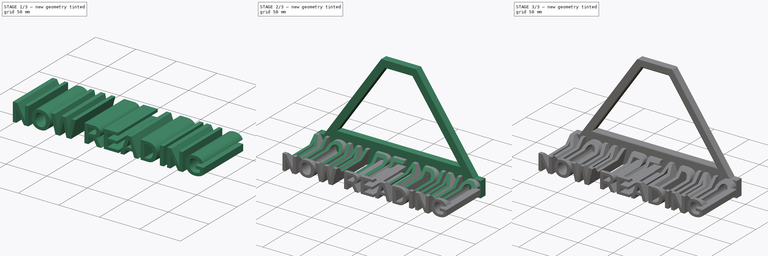
[diagram: build sequence overview — one tinted view per stage of 3, left to right]
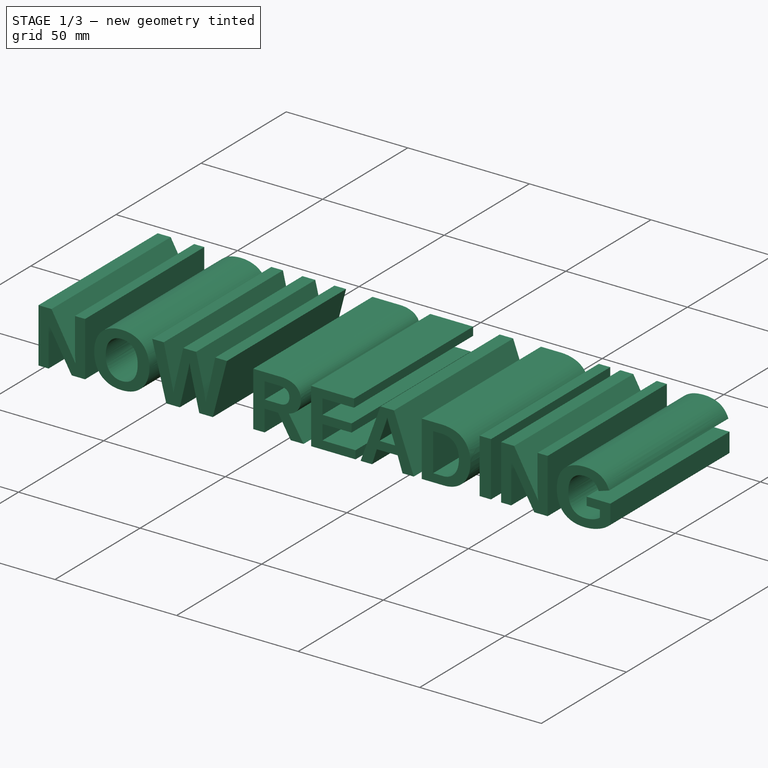
[diagram: stage 1 of 3 — iso view after this stage's code; geometry added in this stage tinted green]
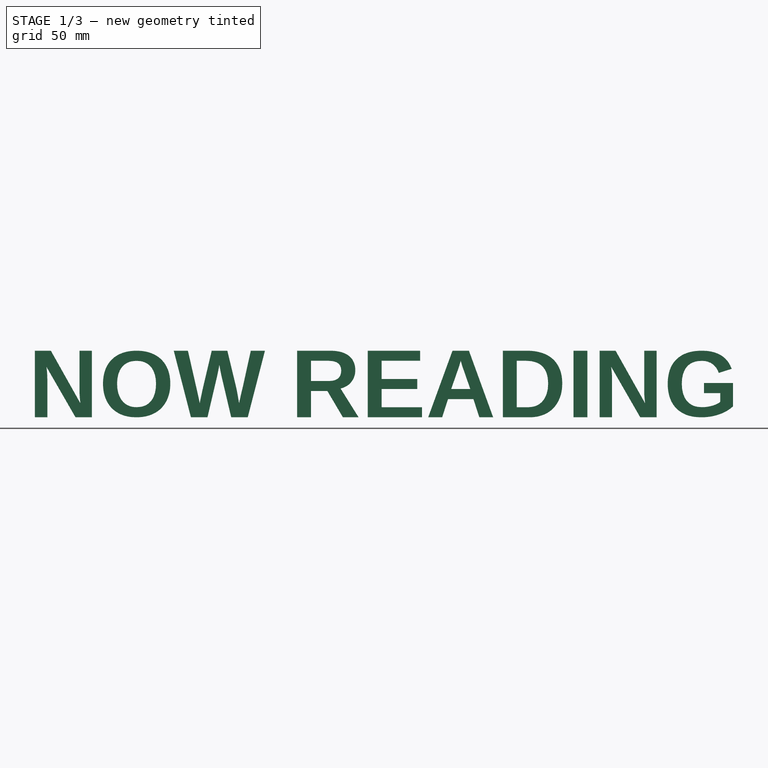
[diagram: stage 1 of 3 — front view after this stage's code; geometry added in this stage tinted green]
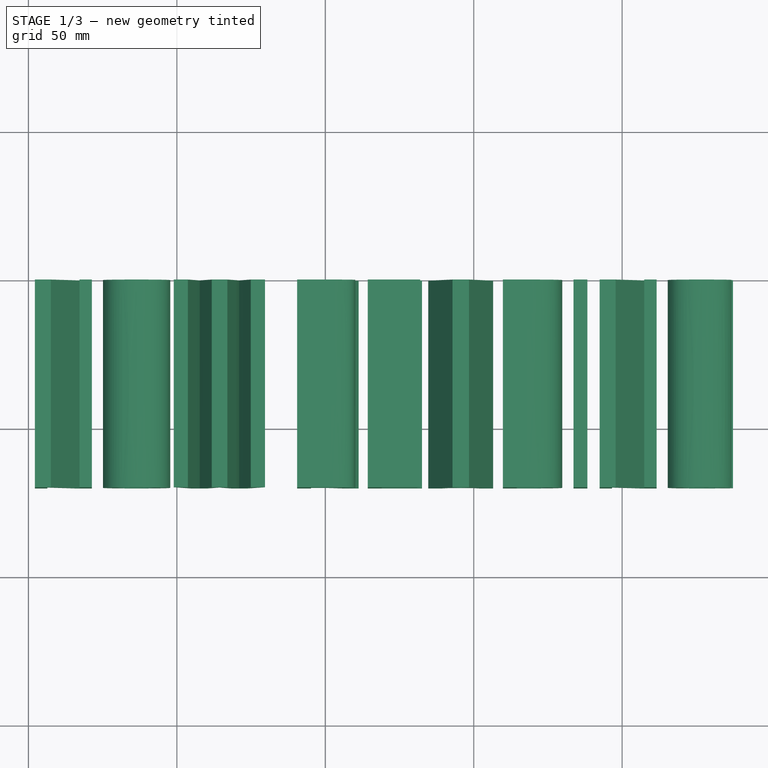
[diagram: stage 1 of 3 — top view after this stage's code; geometry added in this stage tinted green]
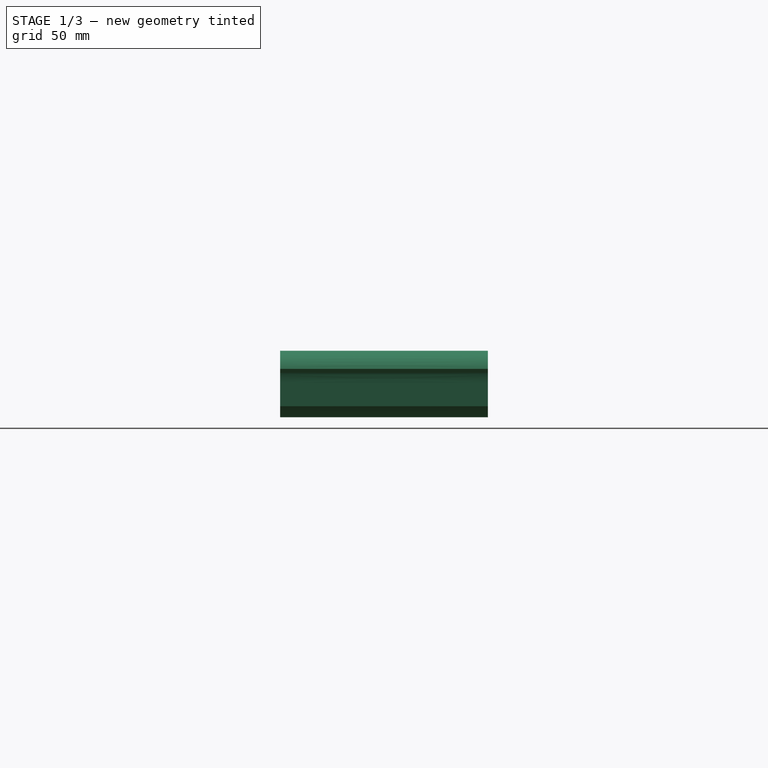
[diagram: stage 1 of 3 — right view after this stage's code; geometry added in this stage tinted green]
FCSTD DOCUMENT  (FreeCAD 0.20R31227 (Git))
Label: now reading stand
License: Creative Commons Attribution
LicenseURL: http://creativecommons.org/licenses/by/4.0/
objects: Sketcher::SketchObject×3, PartDesign::Pad×2, PartDesign::Fillet×2, Part::Part2DObjectPython×1, Part::Extrusion×1, PartDesign::FeatureBase×1, PartDesign::Pocket×1, PartDesign::Body×1
note: 23 computed .brp shape members not serialized (recipe doc carries the construction recipe); baked Part::Feature solids carry a one-line shape summary decoded from their .brp

FEATURE [Part::Part2DObjectPython] ShapeString  # Draft 2D object (typed FeaturePython)
  FontFile = <path>
  MakeFace = true
  Placement = pos=(0,0,0) rot=(1,0,0;1.5708rad)
  Size = 25
  String = NOW READING
  Tracking = 0
  TreeRank = 0
FEATURE [Part::Extrusion] Extrude
  Base = -> ShapeString
  Dir = (0,-1,2.98023e-08)
  DirMode = 2
  FaceMakerClass = Part::FaceMakerBullseye
  InnerTaperAngle = 0
  InnerTaperAngleRev = 0
  LengthFwd = 70
  LengthRev = 0
  Solid = false
  Symmetric = false
  TreeRank = 0
FEATURE [PartDesign::FeatureBase] BaseFeature
  BaseFeature = -> Extrude
  NewSolid = false
  Suppress = false
  TreeRank = 0
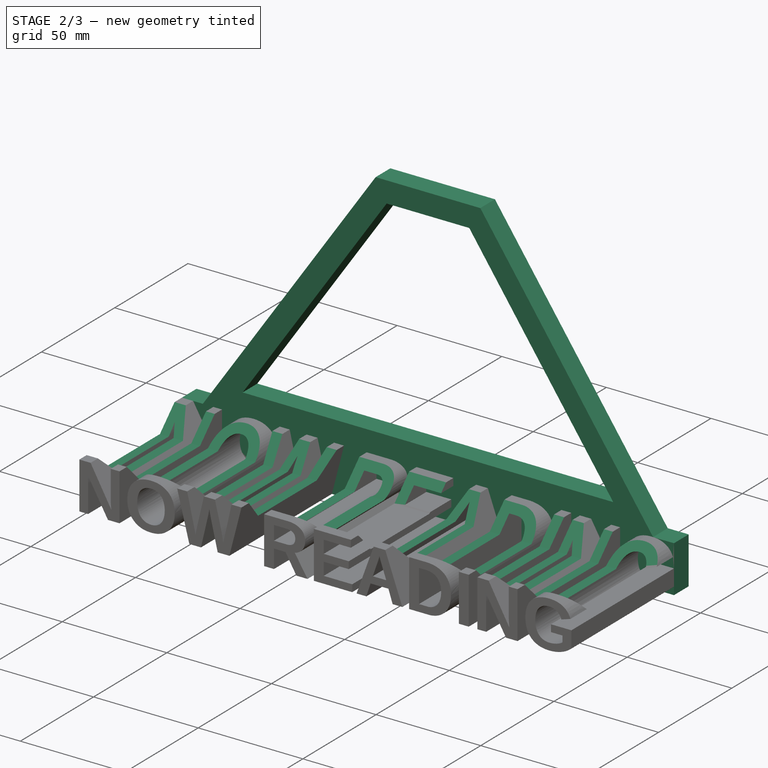
[diagram: stage 2 of 3 — iso view after this stage's code; geometry added in this stage tinted green]
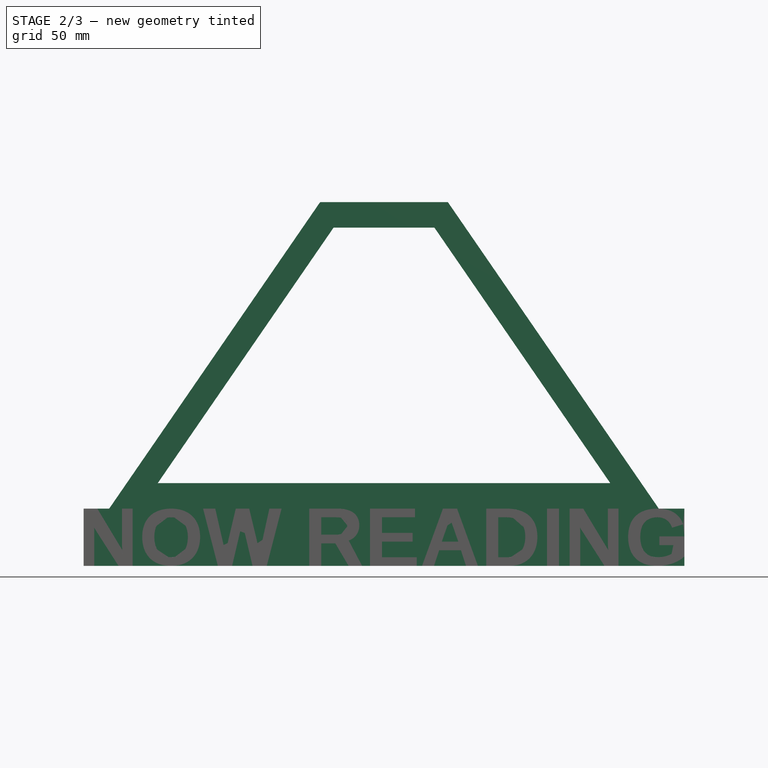
[diagram: stage 2 of 3 — front view after this stage's code; geometry added in this stage tinted green]
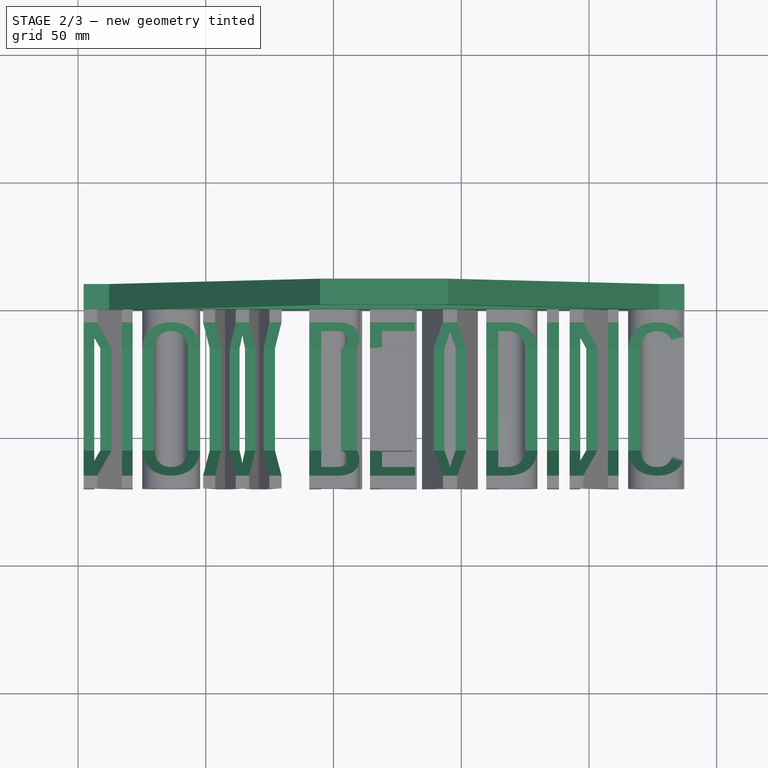
[diagram: stage 2 of 3 — top view after this stage's code; geometry added in this stage tinted green]
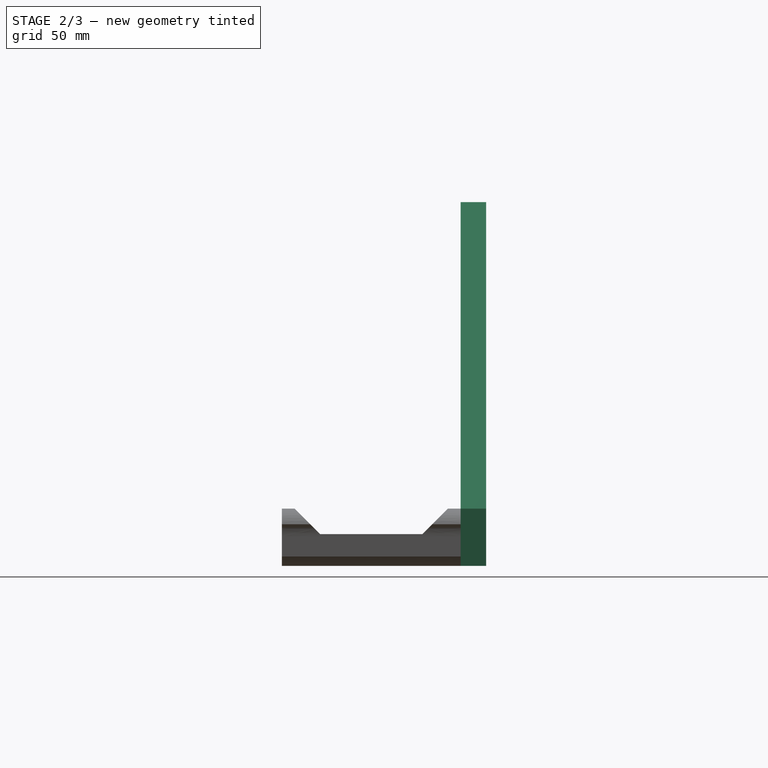
[diagram: stage 2 of 3 — right view after this stage's code; geometry added in this stage tinted green]
FEATURE [Sketcher::SketchObject] Sketch
  ArcFitTolerance = 0
  AttachmentSupport = -> [BaseFeature]
  ExternalGeometry = -> [BaseFeature]
  FullyConstrained = true
  MapMode = 5
  Placement = pos=(0,0,0) rot=(0,0.707107,0.707107;3.14159rad)
  Support = -> [BaseFeature]
  TreeRank = 0
  sketch-geometry (4):
    g0: LineSegment StartX=-2.18684 StartY=22.4204 StartZ=0 EndX=-237.357 EndY=22.4204 EndZ=0
    g1: LineSegment StartX=-237.357 StartY=22.4204 StartZ=0 EndX=-237.357 EndY=0 EndZ=0
    g2: LineSegment StartX=-237.357 StartY=0 StartZ=0 EndX=-2.18684 EndY=0 EndZ=0
    g3: LineSegment StartX=-2.18684 StartY=0 StartZ=0 EndX=-2.18684 EndY=22.4204 EndZ=0
  constraints (11):
    c: Coincident(g0,g1)
    c: Coincident(g1,g2)
    c: Coincident(g2,g3)
    c: Coincident(g3,g0)
    c: Horizontal(g0)
    c: Horizontal(g2)
    c: Vertical(g1)
    c: Vertical(g3)
    c: Coincident(g0,g-3)
    c: PointOnObject(g1,g-1)
    c: PointOnObject(g-4,g1)
FEATURE [PartDesign::Pad] Pad
  AddSubType = 0
  BaseFeature = -> BaseFeature
  CheckUpToFaceLimits = true
  ClaimChildren = false
  Direction = (0,1,-2.98023e-08)
  Fit = 0
  FitJoin = 0
  InnerFit = 0
  InnerFitJoin = 0
  InnerTaperAngle = 0
  InnerTaperAngleRev = 0
  Length = 10
  Length2 = 100
  NewSolid = false
  Profile = -> Sketch
  Suppress = false
  TreeRank = 0
  Type = 0
  _ProfileBasedVersion = 0
FEATURE [Sketcher::SketchObject] Sketch001
  ArcFitTolerance = 0
  AttachmentSupport = -> [Pad]
  ExternalGeometry = -> [Pad]
  FullyConstrained = true
  MapMode = 5
  Placement = pos=(2.18684,0,0) rot=(0.57735,-0.57735,-0.57735;2.0944rad)
  Support = -> [Pad]
  TreeRank = 0
  sketch-geometry (4):
    g0: LineSegment StartX=15 StartY=12.4204 StartZ=0 EndX=55 EndY=12.4204 EndZ=0
    g1: LineSegment StartX=4.99999 StartY=22.4204 StartZ=0 EndX=65 EndY=22.4204 EndZ=0
    g2: LineSegment StartX=4.99999 StartY=22.4204 StartZ=0 EndX=15 EndY=12.4204 EndZ=0
    g3: LineSegment StartX=65 StartY=22.4204 StartZ=0 EndX=55 EndY=12.4204 EndZ=0
  constraints (12):
    c: Horizontal(g0)
    c: PointOnObject(g1,g-3)
    c: PointOnObject(g1,g-3)
    c: Coincident(g3,g1)
    c: Coincident(g3,g0)
    c: DistanceX(g1,g-3) = 5
    c: Coincident(g2,g0)
    c: Coincident(g2,g1)
    c: Distance(g0) = 40
    c: Equal(g3,g2)
    c: Angle(g3,g0) = 2.35619
    c: DistanceY(g0,g1) = 10
FEATURE [PartDesign::Pocket] Pocket
  AddSubType = 1
  BaseFeature = -> Pad
  CheckUpToFaceLimits = true
  ClaimChildren = false
  Fit = 0
  FitJoin = 0
  InnerFit = 0
  InnerFitJoin = 0
  InnerTaperAngle = 0
  InnerTaperAngleRev = 0
  Length = 5
  Length2 = 100
  NewSolid = false
  Profile = -> Sketch001
  Suppress = false
  TreeRank = 0
  Type = 1
  _ProfileBasedVersion = 0
  _Version = 0
FEATURE [Sketcher::SketchObject] Sketch002
  ArcFitTolerance = 0
  AttachmentSupport = -> [Pocket]
  ExternalGeometry = -> [Pocket]
  FullyConstrained = true
  MapMode = 5
  Placement = pos=(0,10,-2.98023e-07) rot=(0,0.707107,0.707107;3.14159rad)
  Support = -> [Pocket]
  TreeRank = 0
  sketch-geometry (8):
    g0: LineSegment StartX=-227.357 StartY=22.4204 StartZ=0 EndX=-144.772 EndY=142.42 EndZ=0
    g1: LineSegment StartX=-144.772 StartY=142.42 StartZ=0 EndX=-94.7718 EndY=142.42 EndZ=0
    g2: LineSegment StartX=-94.7718 StartY=142.42 StartZ=0 EndX=-12.1868 EndY=22.4204 EndZ=0
    g3: LineSegment StartX=-12.1868 StartY=22.4204 StartZ=0 EndX=-227.357 EndY=22.4204 EndZ=0
    g4: LineSegment StartX=-208.335 StartY=32.4204 StartZ=0 EndX=-139.515 EndY=132.42 EndZ=0
    g5: LineSegment StartX=-139.515 StartY=132.42 StartZ=0 EndX=-100.029 EndY=132.42 EndZ=0
    g6: LineSegment StartX=-100.029 StartY=132.42 StartZ=0 EndX=-31.2082 EndY=32.4204 EndZ=0
    g7: LineSegment StartX=-31.2082 StartY=32.4204 StartZ=0 EndX=-208.335 EndY=32.4204 EndZ=0
  constraints (24):
    c: Coincident(g1,g0)
    c: Horizontal(g1)
    c: Coincident(g2,g1)
    c: Coincident(g3,g2)
    c: Coincident(g3,g0)
    c: Distance(g1) = 50
    c: Equal(g2,g0)
    c: DistanceY(g2,g1) = 120
    c: Coincident(g5,g4)
    c: Horizontal(g5)
    c: Coincident(g6,g5)
    c: Coincident(g7,g6)
    c: Coincident(g7,g4)
    c: Horizontal(g7)
    c: Parallel(g4,g0)
    c: Parallel(g6,g2)
    c: DistanceY(g4,g0) = 10
    c: DistanceY(g0,g4) = 10
    c: Distance(g4,g0) = 10
    c: Distance(g5,g2) = 10
    c: PointOnObject(g2,g-3)
    c: Horizontal(g3)
    c: DistanceX(g-3,g0) = 10
    c: DistanceX(g2,g-3) = 10
FEATURE [PartDesign::Pad] Pad001
  AddSubType = 0
  BaseFeature = -> Pocket
  CheckUpToFaceLimits = true
  ClaimChildren = false
  Direction = (0,1,-2.98023e-08)
  Fit = 0
  FitJoin = 0
  InnerFit = 0
  InnerFitJoin = 0
  InnerTaperAngle = 0
  InnerTaperAngleRev = 0
  Length = 10
  Length2 = 100
  NewSolid = false
  Profile = -> Sketch002
  Reversed = true
  Suppress = false
  TreeRank = 0
  Type = 0
  _ProfileBasedVersion = 0
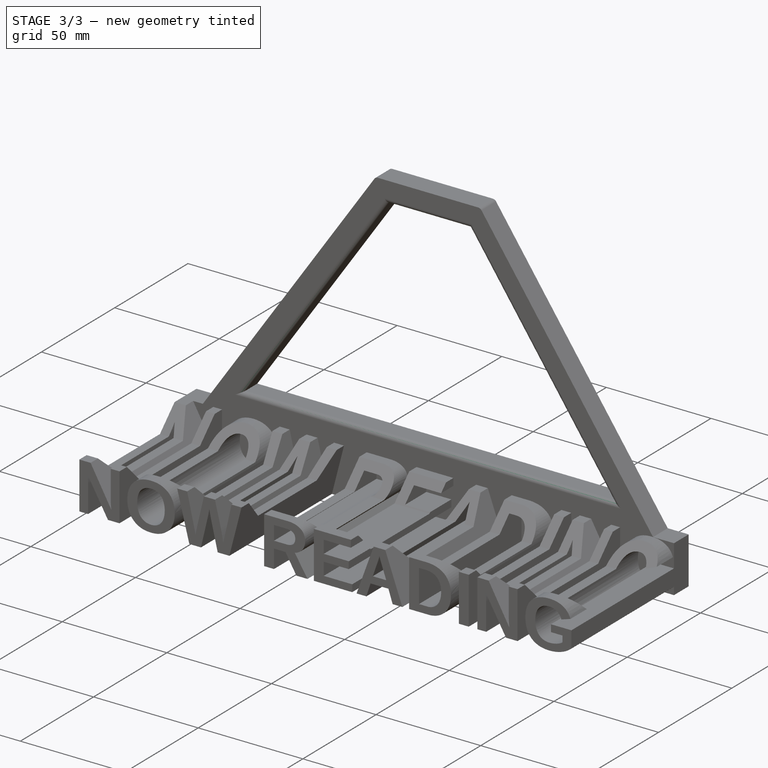
[diagram: stage 3 of 3 — iso view after this stage's code; geometry added in this stage tinted green]
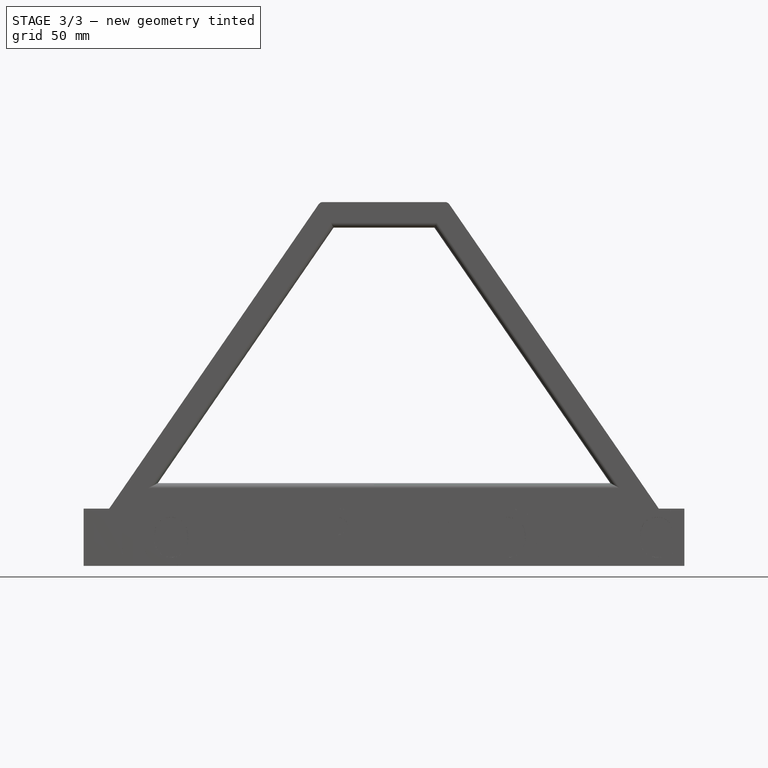
[diagram: stage 3 of 3 — front view after this stage's code; geometry added in this stage tinted green]
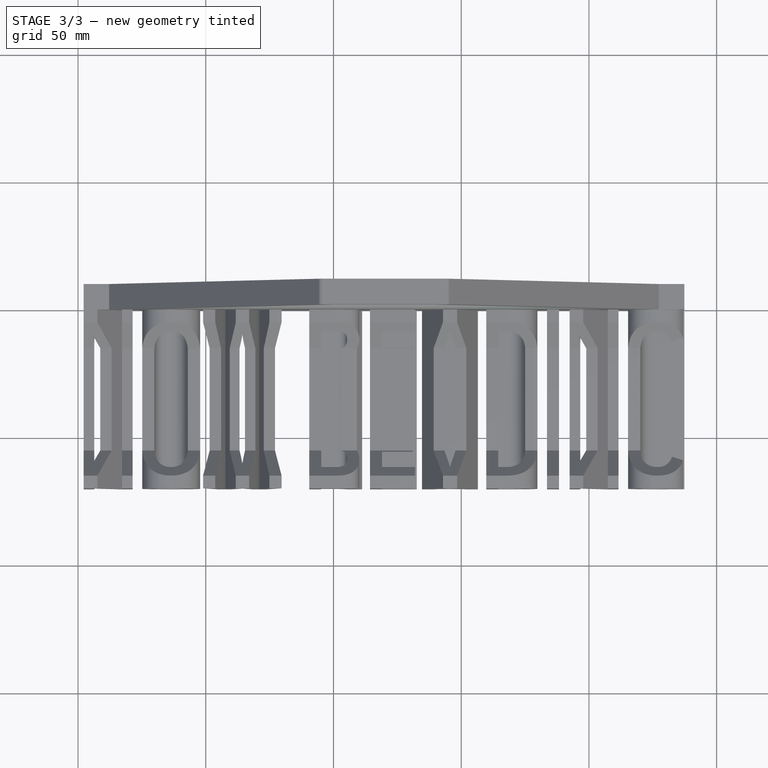
[diagram: stage 3 of 3 — top view after this stage's code; geometry added in this stage tinted green]
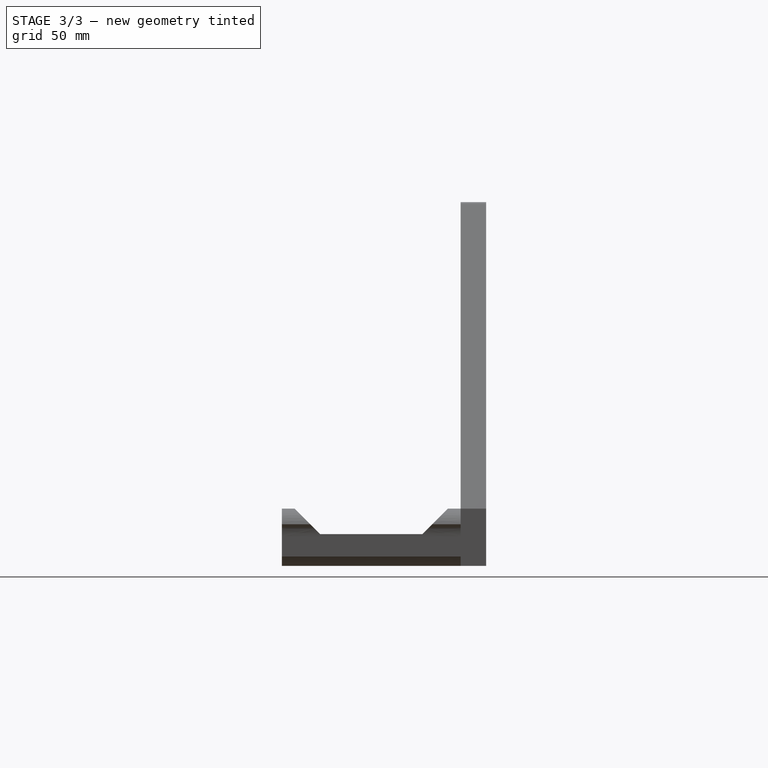
[diagram: stage 3 of 3 — right view after this stage's code; geometry added in this stage tinted green]
FEATURE [PartDesign::Fillet] Fillet
  AddSubType = 0
  Base = -> Pad001 [Edge344,Edge343,Edge342,Edge345]
  BaseFeature = -> Pad001
  NewSolid = false
  Radius = 2
  SupportTransform = false
  Suppress = false
  TreeRank = 0
FEATURE [PartDesign::Fillet] Fillet001
  AddSubType = 0
  Base = -> Fillet [Edge42,Edge44]
  BaseFeature = -> Fillet
  NewSolid = false
  Radius = 2
  SupportTransform = false
  Suppress = false
  TreeRank = 0
FEATURE [PartDesign::Body] Body
  AutoGroupSolids = false
  BaseFeature = -> Extrude
  ClaimAllChildren = false
  ExportMode = 0
  Group = -> [BaseFeature,Sketch,Pad,Sketch001,Pocket,Sketch002,Pad001,Fillet,Fillet001]
  Origin = -> Origin
  Tip = -> Fillet001
  TreeRank = 0
  _ExportChildren = -> [BaseFeature,Pad,Pocket,Pad001,Fillet,Fillet001]
  _GroupVersion = 1
note: 1 file-system path scrubbed to <path> (originals preserved in the JSON sidecar)
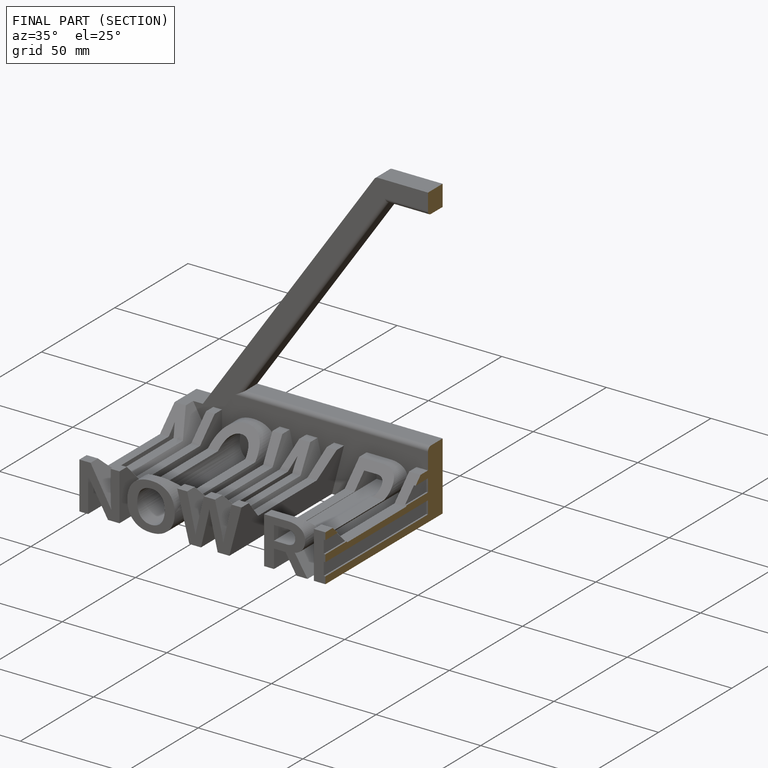
[diagram: finished part — half-section view (interior)]
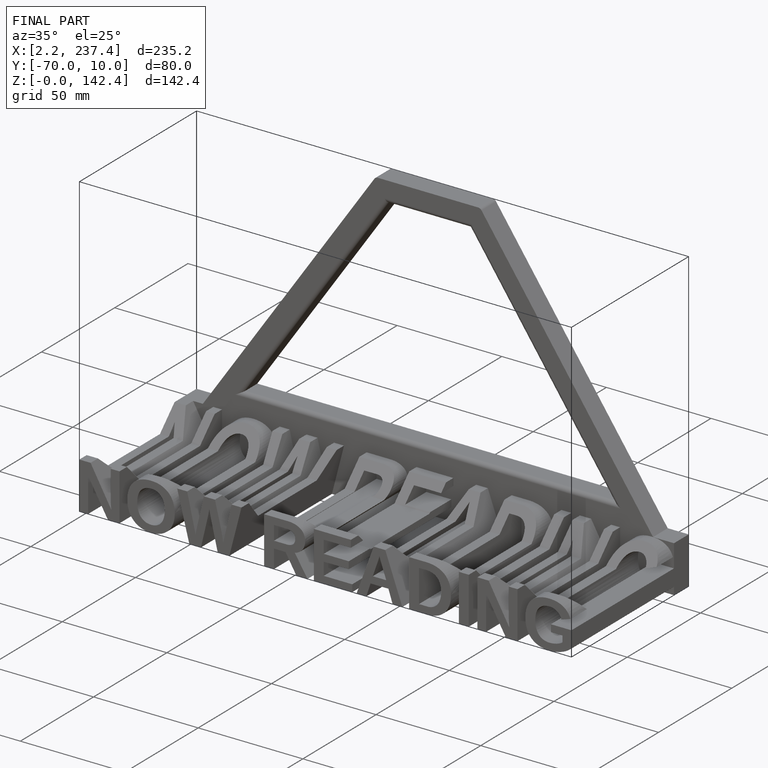
[diagram: finished part — iso view with bounding-box wireframe]
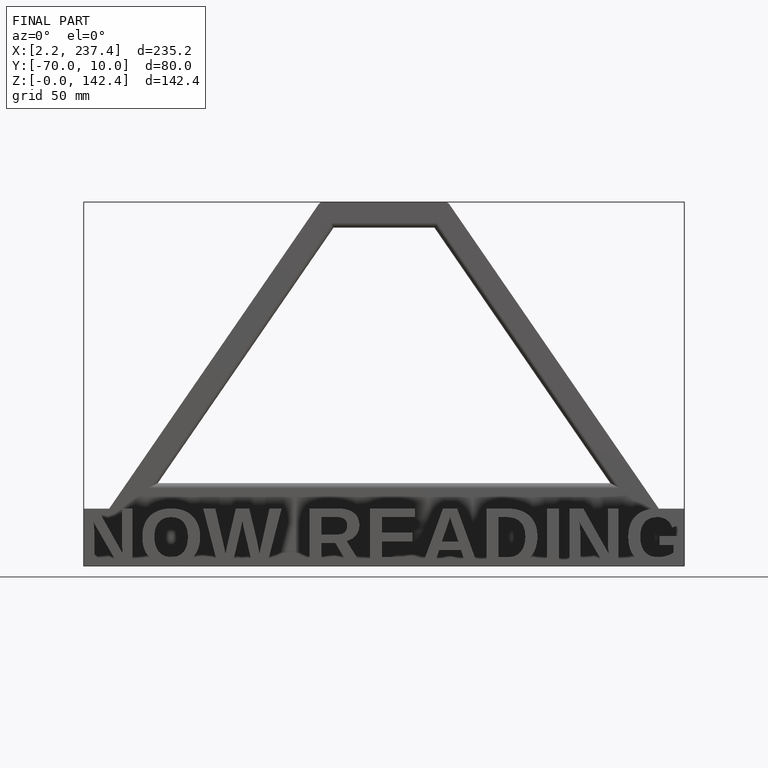
[diagram: finished part — front view with bounding-box wireframe]
